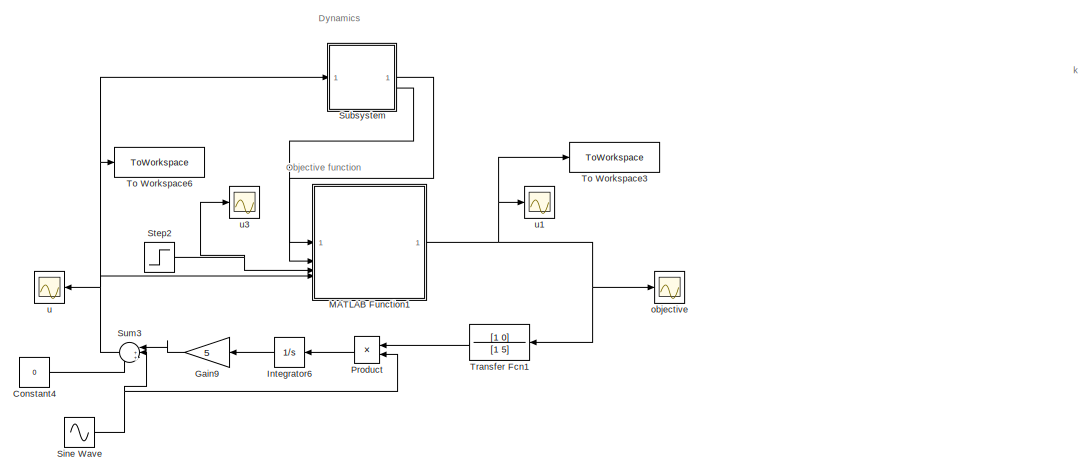
[diagram: root canvas - part 1/3, top right region]
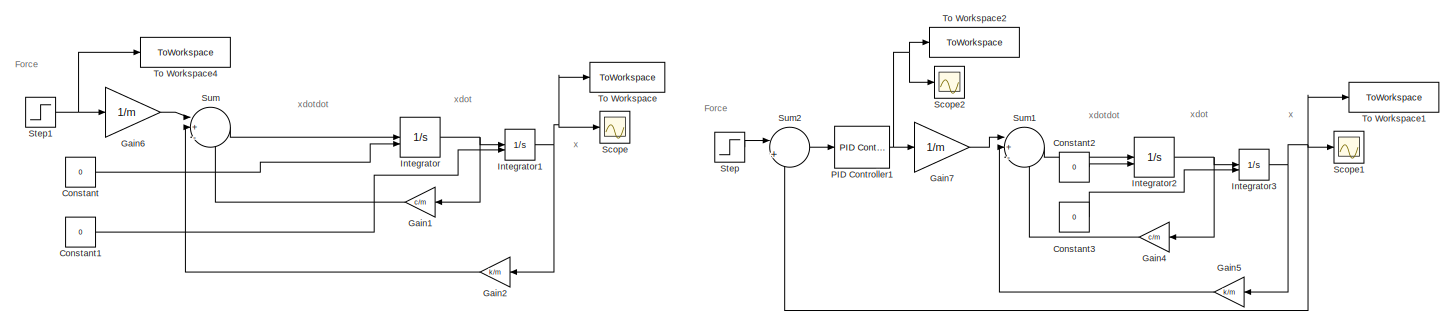
[diagram: root canvas - part 2/3, top left region]
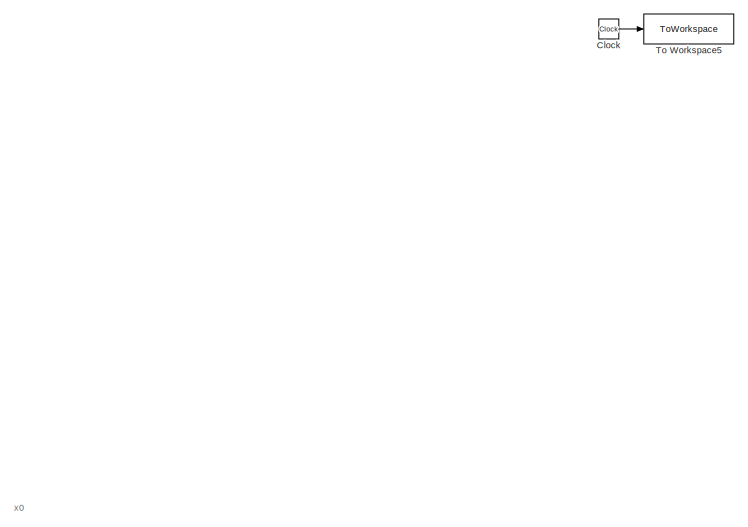
[diagram: root canvas - part 3/3, bottom left region]
MODEL slx_7e7dfef69cd8
KIND model
CONFIG AbsTol = auto
CONFIG EnableMultiTasking = off
CONFIG FixedStep = h
CONFIG MaxStep = auto
CONFIG MinStep = auto
CONFIG RelTol = 1e-3
CONFIG SampleTimeConstraint = Unconstrained
CONFIG SolverName = FixedStepAuto
CONFIG StartTime = 0.0
CONFIG StopTime = 70
BLOCK [Clock] Clock
BLOCK [Constant] Constant
  Value = 0
BLOCK [Constant] Constant1
  Value = 0
BLOCK [Constant] Constant2
  Value = 0
BLOCK [Constant] Constant3
  Value = 0
BLOCK [Constant] Constant4
  Value = 0
BLOCK [Gain] Gain1
  Gain = c/m
  NameLocation = top
BLOCK [Gain] Gain2
  Gain = k/m
  NameLocation = top
BLOCK [Gain] Gain4
  Gain = c/m
  NameLocation = top
BLOCK [Gain] Gain5
  Gain = k/m
  NameLocation = top
BLOCK [Gain] Gain6
  Gain = 1/m
BLOCK [Gain] Gain7
  Gain = 1/m
BLOCK [Gain] Gain9
  Gain = 5
  NameLocation = top
BLOCK [Integrator] Integrator
  InitialCondition = 1
  InitialConditionSource = external
BLOCK [Integrator] Integrator1
  InitialConditionSource = external
BLOCK [Integrator] Integrator2
  InitialCondition = 1
  InitialConditionSource = external
BLOCK [Integrator] Integrator3
  InitialConditionSource = external
BLOCK [Integrator] Integrator6
  NameLocation = top
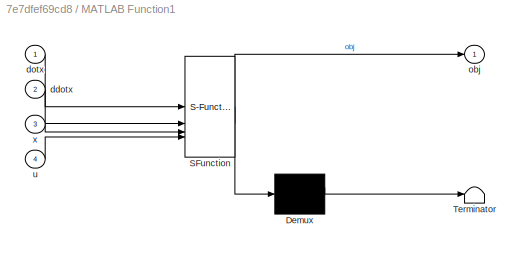
BLOCK [SubSystem] MATLAB Function1
  ErrorFcn = Stateflow.Translate.translate
  LibrarySourceBlock = simulink/User-Defined\nFunctions/MATLAB Function
  PermitHierarchicalResolution = ExplicitOnly
  SFBlockType = MATLAB Function
  TreatAsAtomicUnit = on
BLOCK [Demux] MATLAB Function1/ Demux 
  Outputs = 1
BLOCK [S-Function] MATLAB Function1/ SFunction 
  EnableBusSupport = on
  FunctionName = sf_sfun
  PortCounts = [4 2]
  SFcnIsStateOwnerBlock = off
  SFunctionDeploymentMode = off
  Tag = Stateflow S-Function 1
BLOCK [Terminator] MATLAB Function1/ Terminator 
BLOCK [Inport] MATLAB Function1/ddotx
  Port = 2
BLOCK [Inport] MATLAB Function1/dotx
BLOCK [Outport] MATLAB Function1/obj
BLOCK [Inport] MATLAB Function1/u
  Port = 4
BLOCK [Inport] MATLAB Function1/x
  Port = 3
BLOCK [Reference] PID Controller1  REF=slpidlib/PID Controller
  LibrarySourceBlock = simulink/Continuous/PID Controller
  SourceBlock = slpidlib/PID Controller
  SourceType = PID 1dof
BLOCK [Product] Product
  NameLocation = top
BLOCK [Scope] Scope
  Floating = off
  NumInputPorts = 1
  ScopeSpecificationString = Simulink.scopes.TimeScopeBlockCfg('CurrentConfiguration', extmgr.ConfigurationSet(extmgr.Configuration('Core','General UI',true),extmgr.Configuration('Core','Source UI',true),extmgr.Configuration('Sources','WiredSimulink',true),extmgr.Configuration('Visuals','Time Domain',true,'SerializedDisplays',{struct('MinYLimReal','-0.1961','MaxYLimReal','1.76489','YLabelReal','','MinYLimMag','0.00000','MaxYL...<+1362ch>
BLOCK [Scope] Scope1
  Floating = off
  NumInputPorts = 1
  ScopeSpecificationString = Simulink.scopes.TimeScopeBlockCfg('CurrentConfiguration', extmgr.ConfigurationSet(extmgr.Configuration('Core','General UI',true),extmgr.Configuration('Core','Source UI',true),extmgr.Configuration('Sources','WiredSimulink',true,'DataLoggingVariableName','ScopeData1'),extmgr.Configuration('Visuals','Time Domain',true,'SerializedDisplays',{struct('MinYLimReal','-0.12452','MaxYLimReal','1.12064','YLab...<+1403ch>
BLOCK [Scope] Scope2
  Floating = off
  NumInputPorts = 1
  ScopeSpecificationString = Simulink.scopes.TimeScopeBlockCfg('CurrentConfiguration', extmgr.ConfigurationSet(extmgr.Configuration('Core','General UI',true),extmgr.Configuration('Core','Source UI',true),extmgr.Configuration('Sources','WiredSimulink',true,'DataLoggingVariableName','ScopeData4'),extmgr.Configuration('Visuals','Time Domain',true,'SerializedDisplays',{struct('MinYLimReal','-0.12453','MaxYLimReal','1.12076','YLab...<+1408ch>
BLOCK [Sin] Sine Wave
  Amplitude = 0.03
  Frequency = 8
  SampleTime = 0
BLOCK [Step] Step
  After = Ref_in
  SampleTime = 0
BLOCK [Step] Step1
  After = Ref_in
  SampleTime = 0
BLOCK [Step] Step2
  After = Ref_in
  SampleTime = 0
  Time = 0
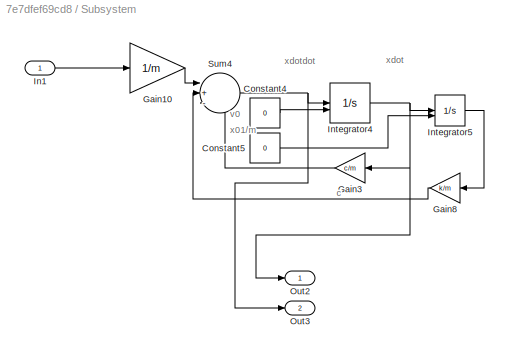
BLOCK [SubSystem] Subsystem
BLOCK [Constant] Subsystem/Constant4
  Value = 0
BLOCK [Constant] Subsystem/Constant5
  Value = 0
BLOCK [Gain] Subsystem/Gain10
  Gain = 1/m
BLOCK [Gain] Subsystem/Gain3
  Gain = c/m
  NameLocation = top
BLOCK [Gain] Subsystem/Gain8
  Gain = k/m
  NameLocation = top
BLOCK [Inport] Subsystem/In1
BLOCK [Integrator] Subsystem/Integrator4
  InitialCondition = 1
  InitialConditionSource = external
BLOCK [Integrator] Subsystem/Integrator5
  InitialConditionSource = external
BLOCK [Outport] Subsystem/Out2
BLOCK [Outport] Subsystem/Out3
  Port = 2
BLOCK [Sum] Subsystem/Sum4
  Inputs = |+--
BLOCK [Sum] Sum
  Inputs = |+--
BLOCK [Sum] Sum1
  Inputs = |+--
BLOCK [Sum] Sum2
  Inputs = |+-
BLOCK [Sum] Sum3
  Inputs = |+++
  NameLocation = top
BLOCK [ToWorkspace] To Workspace
  FixptAsFi = on
  MaxDataPoints = inf
  SampleTime = -1
  VariableName = dyn_out
BLOCK [ToWorkspace] To Workspace1
  FixptAsFi = on
  MaxDataPoints = inf
  SampleTime = -1
  Save2DSignal = 2-D array (concatenate along first dimension)
  VariableName = PI_out
BLOCK [ToWorkspace] To Workspace2
  FixptAsFi = on
  MaxDataPoints = inf
  SampleTime = -1
  Save2DSignal = 2-D array (concatenate along first dimension)
  VariableName = PI_Cs
BLOCK [ToWorkspace] To Workspace3
  FixptAsFi = on
  MaxDataPoints = inf
  SampleTime = -1
  Save2DSignal = 2-D array (concatenate along first dimension)
  VariableName = J
BLOCK [ToWorkspace] To Workspace4
  FixptAsFi = on
  MaxDataPoints = inf
  SampleTime = -1
  VariableName = ref
BLOCK [ToWorkspace] To Workspace5
  FixptAsFi = on
  MaxDataPoints = inf
  SampleTime = -1
  VariableName = t
BLOCK [ToWorkspace] To Workspace6
  FixptAsFi = on
  MaxDataPoints = inf
  SampleTime = -1
  Save2DSignal = 2-D array (concatenate along first dimension)
  VariableName = u
BLOCK [TransferFcn] Transfer Fcn1
  Denominator = [1 5]
  NameLocation = top
  Numerator = [1 0]
BLOCK [Scope] objective
  Floating = off
  NumInputPorts = 1
  ScopeSpecificationString = Simulink.scopes.TimeScopeBlockCfg('CurrentConfiguration', extmgr.ConfigurationSet(extmgr.Configuration('Core','General UI',true),extmgr.Configuration('Core','Source UI',true),extmgr.Configuration('Sources','WiredSimulink',true,'DataLoggingVariableName','ScopeData1'),extmgr.Configuration('Visuals','Time Domain',true,'SerializedDisplays',{struct('MinYLimReal','0.97964','MaxYLimReal','1.00062','YLabe...<+1446ch>
BLOCK [Scope] u
  Floating = off
  NameLocation = top
  NumInputPorts = 1
  ScopeSpecificationString = Simulink.scopes.TimeScopeBlockCfg('CurrentConfiguration', extmgr.ConfigurationSet(extmgr.Configuration('Core','General UI',true),extmgr.Configuration('Core','Source UI',true),extmgr.Configuration('Sources','WiredSimulink',true,'DataLoggingVariableName','ScopeData2'),extmgr.Configuration('Visuals','Time Domain',true,'SerializedDisplays',{struct('MinYLimReal','-0.0241','MaxYLimReal','0.05195','YLabe...<+1392ch>
BLOCK [Scope] u1
  Floating = off
  NumInputPorts = 1
  ScopeSpecificationString = Simulink.scopes.TimeScopeBlockCfg('CurrentConfiguration', extmgr.ConfigurationSet(extmgr.Configuration('Core','General UI',true),extmgr.Configuration('Core','Source UI',true),extmgr.Configuration('Sources','WiredSimulink',true,'DataLoggingVariableName','ScopeData1'),extmgr.Configuration('Visuals','Time Domain',true,'SerializedDisplays',{struct('MinYLimReal','0.99922','MaxYLimReal','1.00009','YLabe...<+1402ch>
BLOCK [Scope] u3
  Floating = off
  NumInputPorts = 1
  ScopeSpecificationString = Simulink.scopes.TimeScopeBlockCfg('CurrentConfiguration', extmgr.ConfigurationSet(extmgr.Configuration('Core','General UI',true),extmgr.Configuration('Core','Source UI',true),extmgr.Configuration('Sources','WiredSimulink',true,'DataLoggingVariableName','ScopeData3'),extmgr.Configuration('Visuals','Time Domain',true,'SerializedDisplays',{struct('MinYLimReal','0.9','MaxYLimReal','1.1','YLabelReal','...<+1355ch>
ANNOTATION (root): Dynamics
ANNOTATION (root): Force
ANNOTATION (root): Objective function
ANNOTATION (root): k
ANNOTATION (root): x
ANNOTATION (root): x0
ANNOTATION (root): xdot
ANNOTATION (root): xdotdot
ANNOTATION Subsystem: 1/m
ANNOTATION Subsystem: c
ANNOTATION Subsystem: v0
ANNOTATION Subsystem: x0
ANNOTATION Subsystem: xdot
ANNOTATION Subsystem: xdotdot
LINE Clock:1 -> To Workspace5:1
LINE Constant1:1 -> Integrator1:2
LINE Constant2:1 -> Integrator2:2
LINE Constant3:1 -> Integrator3:2
LINE Constant4:1 -> Sum3:3
LINE Constant:1 -> Integrator:2
LINE Gain1:1 -> Sum:3
LINE Gain2:1 -> Sum:2
LINE Gain4:1 -> Sum1:3
LINE Gain5:1 -> Sum1:2
LINE Gain6:1 -> Sum:1
LINE Gain7:1 -> Sum1:1
LINE Gain9:1 -> Sum3:1
NET Integrator1:1 -> Gain2:1, Scope:1, To Workspace:1
NET Integrator2:1 -> Gain4:1, Integrator3:1
NET Integrator3:1 -> Gain5:1, Scope1:1, Sum2:2, To Workspace1:1
LINE Integrator6:1 -> Gain9:1
NET Integrator:1 -> Gain1:1, Integrator1:1
NET MATLAB Function1:1 -> To Workspace3:1, Transfer Fcn1:1, objective:1, u1:1
NET PID Controller1:1 -> Gain7:1, Scope2:1, To Workspace2:1
LINE Product:1 -> Integrator6:1
NET Sine Wave:1 -> Product:2, Sum3:2
NET Step1:1 -> Gain6:1, To Workspace4:1
NET Step2:1 -> MATLAB Function1:3, u3:1
LINE Step:1 -> Sum2:1
LINE Subsystem/Constant4:1 -> Subsystem/Integrator4:2
LINE Subsystem/Constant5:1 -> Subsystem/Integrator5:2
LINE Subsystem/Gain10:1 -> Subsystem/Sum4:1
LINE Subsystem/Gain3:1 -> Subsystem/Sum4:3
LINE Subsystem/Gain8:1 -> Subsystem/Sum4:2
LINE Subsystem/In1:1 -> Subsystem/Gain10:1
NET Subsystem/Integrator4:1 -> Subsystem/Gain3:1, Subsystem/Integrator5:1, Subsystem/Out2:1
LINE Subsystem/Integrator5:1 -> Subsystem/Gain8:1
NET Subsystem/Sum4:1 -> Subsystem/Integrator4:1, Subsystem/Out3:1
LINE Subsystem:1 -> MATLAB Function1:1
LINE Subsystem:2 -> MATLAB Function1:2
LINE Sum1:1 -> Integrator2:1
LINE Sum2:1 -> PID Controller1:1
NET Sum3:1 -> MATLAB Function1:4, Subsystem:1, To Workspace6:1, u:1
LINE Sum:1 -> Integrator:1
LINE Transfer Fcn1:1 -> Product:1
note: NET lines group one-source signal fan-out (src -> all destinations, sorted); 1:1 wires keep LINE
CHART MATLAB Function1 states=1 transitions=1
  STATE_LABEL 'eML_blk_kernel()'
  STATE_LABEL 'SCRIPT:\n\n\n\n\nfunction obj = fcn(dotx, ddotx,x,u)\n\n m=2;\n c=0.5;\n k=1;\n\nobj=(x-(u-c*dotx-m*ddotx)/k);\n\nend\n\n'
CHART  states=0 transitions=0
